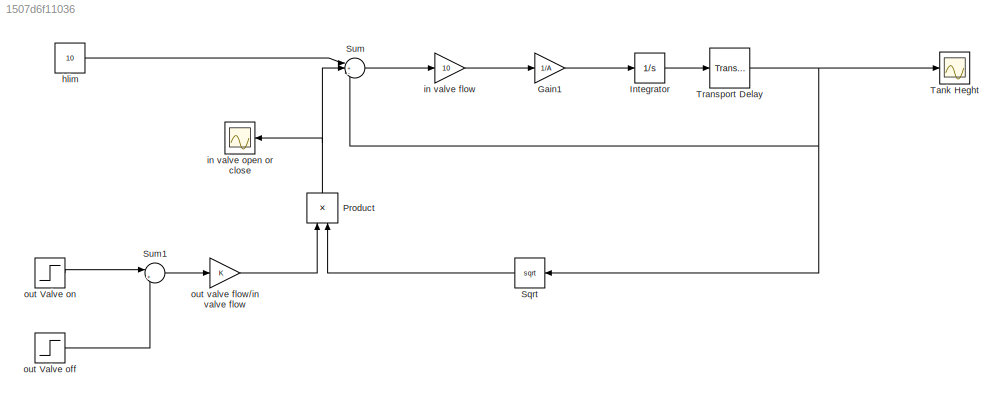
MODEL slx_1507d6f11036
KIND model
CONFIG AbsTol = auto
CONFIG EnableMultiTasking = off
CONFIG FixedStep = auto
CONFIG InitFcn = A = 100 ;\n
CONFIG MaxStep = auto
CONFIG MinStep = auto
CONFIG RelTol = 1e-3
CONFIG SampleTimeConstraint = Unconstrained
CONFIG SolverName = VariableStepAuto
CONFIG StartTime = 0.0
CONFIG StopTime = 150
BLOCK [Gain] Gain1
  Gain = 1/A
BLOCK [Integrator] Integrator
  InitialCondition = 6
BLOCK [Product] Product
  NameLocation = right
BLOCK [Sqrt] Sqrt
  NameLocation = top
BLOCK [Sum] Sum
  Inputs = |+--
BLOCK [Sum] Sum1
  Inputs = |+-
BLOCK [Scope] Tank Heght
  Floating = off
  NumInputPorts = 1
  ScopeSpecificationString = Simulink.scopes.TimeScopeBlockCfg('CurrentConfiguration', extmgr.ConfigurationSet(extmgr.Configuration('Core','General UI',true),extmgr.Configuration('Core','Source UI',true),extmgr.Configuration('Sources','WiredSimulink',true),extmgr.Configuration('Visuals','Time Domain',true,'SerializedDisplays',{struct('MinYLimReal','-1.24846','MaxYLimReal','11.23614','YLabelReal','','MinYLimMag','0.00000','Max...<+1457ch>
BLOCK [TransportDelay] Transport Delay
  NameLocation = top
BLOCK [Constant] hlim
  Value = 10
BLOCK [Gain] in valve flow
  Gain = 10
BLOCK [Scope] in valve open or close
  Floating = off
  NameLocation = top
  NumInputPorts = 1
  ScopeSpecificationString = Simulink.scopes.TimeScopeBlockCfg('CurrentConfiguration', extmgr.ConfigurationSet(extmgr.Configuration('Core','General UI',true),extmgr.Configuration('Core','Source UI',true),extmgr.Configuration('Sources','WiredSimulink',true,'DataLoggingVariableName','ScopeData1'),extmgr.Configuration('Visuals','Time Domain',true,'SerializedDisplays',{struct('MinYLimReal','-0.39438','MaxYLimReal','3.54944','YLab...<+1484ch>
BLOCK [Step] out Valve off
  SampleTime = 0
  Time = 100
BLOCK [Step] out Valve on
  SampleTime = 0
  Time = 40
BLOCK [Gain] out valve flow//in valve flow 
LINE Gain1:1 -> Integrator:1
LINE Integrator:1 -> Transport Delay:1
NET Product:1 -> Sum:2, in valve open or close:1
LINE Sqrt:1 -> Product:2
LINE Sum1:1 -> out valve flow//in valve flow :1
LINE Sum:1 -> in valve flow:1
NET Transport Delay:1 -> Sqrt:1, Sum:3, Tank Heght:1
LINE hlim:1 -> Sum:1
LINE in valve flow:1 -> Gain1:1
LINE out Valve off:1 -> Sum1:2
LINE out Valve on:1 -> Sum1:1
LINE out valve flow//in valve flow :1 -> Product:1
note: NET lines group one-source signal fan-out (src -> all destinations, sorted); 1:1 wires keep LINE
